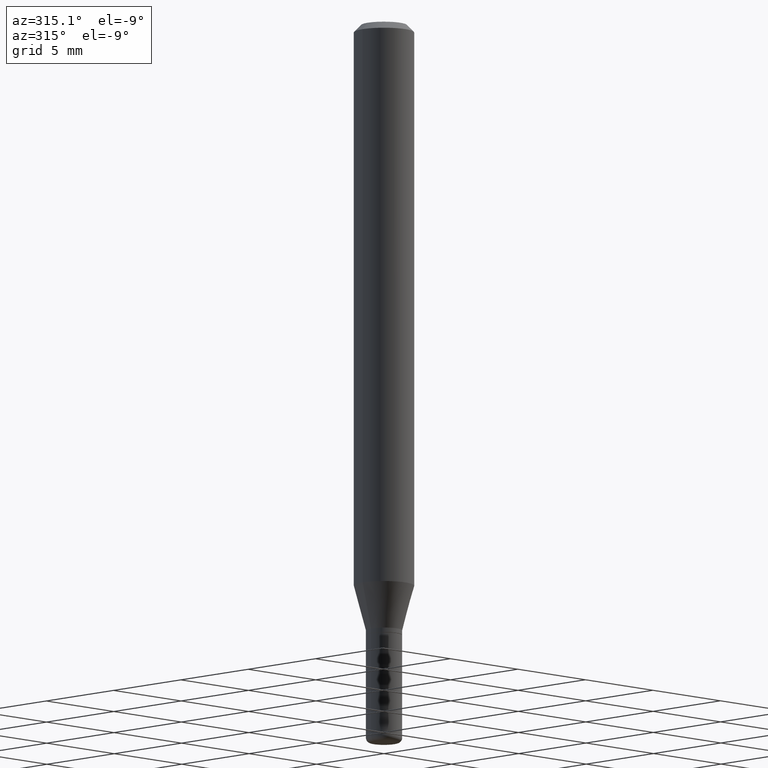
[diagram: clean part render]
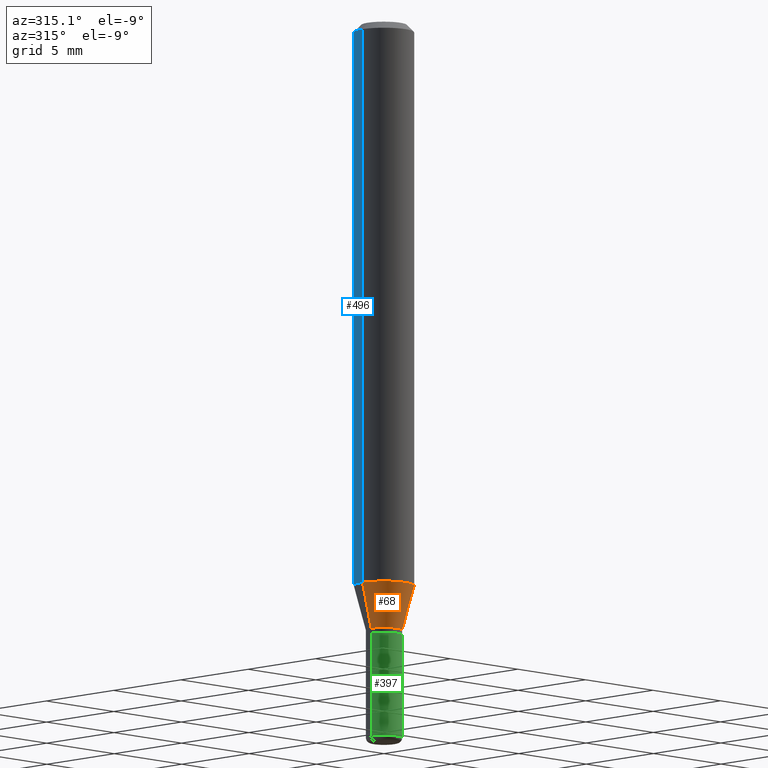
[diagram: same view with three faces highlighted in distinct colors, each labeled with its STEP entity id]
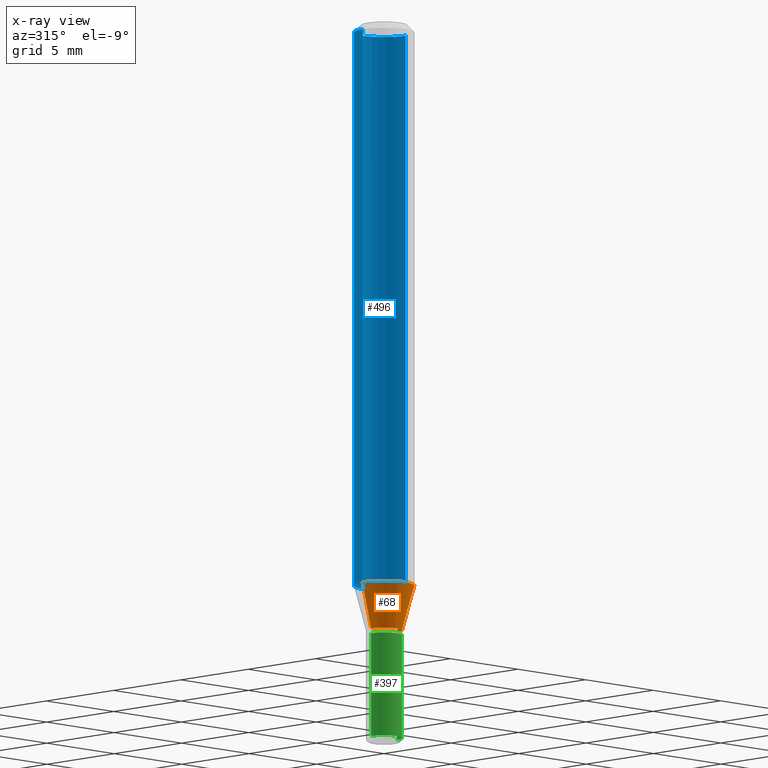
[diagram: x-ray of the same camera — body ghosted, the three highlighted faces saturated]
A machine part, auxiliary view with three faces highlighted in distinct colors.
The next image is the same camera in x-ray (body ghosted, the three faces saturated) — at least one of them is partly hidden behind the body in this view.
Their STEP definitions:

[orange] entity #68 — the highlighted conical surface has half-angle 15 deg.
#2 = LINE ( 'NONE', #164, #67 ) ;
#19 = EDGE_CURVE ( 'NONE', #349, #473, #350, .T. ) ;
#36 = DIRECTION ( 'NONE',  ( 1.000000000000000000, -6.982962677686276177E-15, 0.000000000000000000 ) ) ;
#52 = EDGE_CURVE ( 'NONE', #349, #511, #247, .T. ) ;
#60 = AXIS2_PLACEMENT_3D ( 'NONE', #303, #63, #229 ) ;
#63 = DIRECTION ( 'NONE',  ( -2.445468806185136597E-29, 3.491481338843145583E-15, 1.000000000000000000 ) ) ;
#67 = VECTOR ( 'NONE', #320, 39.37007874015748854 ) ;
#68 = ADVANCED_FACE ( 'NONE', ( #456 ), #282, .T. ) ;
#94 = AXIS2_PLACEMENT_3D ( 'NONE', #117, #393, #36 ) ;
#95 = CIRCLE ( 'NONE', #379, 0.06250000000000000000 ) ;
#117 = CARTESIAN_POINT ( 'NONE',  ( 3.093518039824198064E-29, -4.416723893636579156E-15, -1.265000000000000124 ) ) ;
#155 = EDGE_LOOP ( 'NONE', ( #484, #163, #310, #158 ) ) ;
#158 = ORIENTED_EDGE ( 'NONE', *, *, #330, .F. ) ;
#163 = ORIENTED_EDGE ( 'NONE', *, *, #19, .T. ) ;
#164 = CARTESIAN_POINT ( 'NONE',  ( 0.03749999999999995698, -4.678584994049814158E-15, -1.265000000000000124 ) ) ;
#165 = EDGE_CURVE ( 'NONE', #473, #410, #2, .T. ) ;
#203 = CARTESIAN_POINT ( 'NONE',  ( 2.865352693999004031E-29, -4.090964249880548061E-15, -1.171698729810777939 ) ) ;
#229 = DIRECTION ( 'NONE',  ( 1.000000000000000000, -6.982962677686276177E-15, 0.000000000000000000 ) ) ;
#237 = DIRECTION ( 'NONE',  ( 1.000000000000000000, -6.982962677686262766E-15, 0.000000000000000000 ) ) ;
#247 = LINE ( 'NONE', #446, #338 ) ;
#260 = CARTESIAN_POINT ( 'NONE',  ( -0.06250000000000000000, -3.646875040030485445E-15, -1.171698729810777939 ) ) ;
#282 = CONICAL_SURFACE ( 'NONE', #60, 0.03749999999999995698, 0.2617993877991495189 ) ;
#303 = CARTESIAN_POINT ( 'NONE',  ( 3.093518039824198064E-29, -4.416723893636579156E-15, -1.265000000000000124 ) ) ;
#310 = ORIENTED_EDGE ( 'NONE', *, *, #165, .T. ) ;
#320 = DIRECTION ( 'NONE',  ( 0.2588190451025207950, 1.565188264969625912E-15, 0.9659258262890682012 ) ) ;
#330 = EDGE_CURVE ( 'NONE', #511, #410, #95, .T. ) ;
#338 = VECTOR ( 'NONE', #366, 39.37007874015748854 ) ;
#349 = VERTEX_POINT ( 'NONE', #356 ) ;
#350 = CIRCLE ( 'NONE', #94, 0.03749999999999995698 ) ;
#356 = CARTESIAN_POINT ( 'NONE',  ( -0.03749999999999995698, -3.898572703878513594E-15, -1.265000000000000124 ) ) ;
#362 = DIRECTION ( 'NONE',  ( -2.445468806185136597E-29, 3.491481338843145583E-15, 1.000000000000000000 ) ) ;
#366 = DIRECTION ( 'NONE',  ( -0.2588190451025207950, 5.211531920934546309E-15, 0.9659258262890682012 ) ) ;
#378 = CARTESIAN_POINT ( 'NONE',  ( 0.06250000000000000000, -4.527399417235938941E-15, -1.171698729810777939 ) ) ;
#379 = AXIS2_PLACEMENT_3D ( 'NONE', #203, #362, #237 ) ;
#393 = DIRECTION ( 'NONE',  ( -2.445468806185136597E-29, 3.491481338843145583E-15, 1.000000000000000000 ) ) ;
#410 = VERTEX_POINT ( 'NONE', #378 ) ;
#446 = CARTESIAN_POINT ( 'NONE',  ( -0.03749999999999995698, -4.150270367726541744E-15, -1.265000000000000124 ) ) ;
#455 = CARTESIAN_POINT ( 'NONE',  ( 0.03749999999999995698, -4.678584994049814158E-15, -1.265000000000000124 ) ) ;
#456 = FACE_OUTER_BOUND ( 'NONE', #155, .T. ) ;
#473 = VERTEX_POINT ( 'NONE', #455 ) ;
#484 = ORIENTED_EDGE ( 'NONE', *, *, #52, .F. ) ;
#511 = VERTEX_POINT ( 'NONE', #260 ) ;

[blue] entity #496 — the highlighted cylindrical surface (edge-blend (fillet) strip) has radius 1.5875 mm, axis along (-0, 0, 1).
#34 = EDGE_CURVE ( 'NONE', #410, #451, #80, .T. ) ;
#42 = CARTESIAN_POINT ( 'NONE',  ( -0.06250000000000000000, 4.440892098500626162E-16, -3.074334431409316114E-30 ) ) ;
#56 = CYLINDRICAL_SURFACE ( 'NONE', #236, 0.06250000000000000000 ) ;
#72 = VERTEX_POINT ( 'NONE', #383 ) ;
#80 = LINE ( 'NONE', #348, #406 ) ;
#81 = ORIENTED_EDGE ( 'NONE', *, *, #34, .F. ) ;
#85 = AXIS2_PLACEMENT_3D ( 'NONE', #246, #472, #437 ) ;
#113 = DIRECTION ( 'NONE',  ( -2.445468806185136597E-29, 3.491481338843145583E-15, 1.000000000000000000 ) ) ;
#114 = ORIENTED_EDGE ( 'NONE', *, *, #257, .F. ) ;
#129 = ORIENTED_EDGE ( 'NONE', *, *, #298, .T. ) ;
#166 = DIRECTION ( 'NONE',  ( 1.000000000000000000, -6.982962677686262766E-15, 0.000000000000000000 ) ) ;
#169 = CARTESIAN_POINT ( 'NONE',  ( 0.000000000000000000, 0.000000000000000000, 0.000000000000000000 ) ) ;
#172 = VECTOR ( 'NONE', #354, 39.37007874015748143 ) ;
#198 = ORIENTED_EDGE ( 'NONE', *, *, #213, .T. ) ;
#213 = EDGE_CURVE ( 'NONE', #410, #511, #339, .T. ) ;
#233 = DIRECTION ( 'NONE',  ( -2.445468806185136877E-29, 3.491481338843145188E-15, 1.000000000000000000 ) ) ;
#236 = AXIS2_PLACEMENT_3D ( 'NONE', #169, #288, #454 ) ;
#246 = CARTESIAN_POINT ( 'NONE',  ( 3.668203209277632395E-31, -5.237222008264614861E-17, -0.01499999999999970281 ) ) ;
#257 = EDGE_CURVE ( 'NONE', #451, #72, #477, .T. ) ;
#260 = CARTESIAN_POINT ( 'NONE',  ( -0.06250000000000000000, -3.646875040030485445E-15, -1.171698729810777939 ) ) ;
#261 = FACE_OUTER_BOUND ( 'NONE', #470, .T. ) ;
#288 = DIRECTION ( 'NONE',  ( -2.445468806185136597E-29, 3.491481338843145583E-15, 1.000000000000000000 ) ) ;
#298 = EDGE_CURVE ( 'NONE', #511, #72, #480, .T. ) ;
#339 = CIRCLE ( 'NONE', #359, 0.06250000000000000000 ) ;
#348 = CARTESIAN_POINT ( 'NONE',  ( 0.06250000000000000000, -4.364351673553916694E-16, 3.047610484872459871E-30 ) ) ;
#354 = DIRECTION ( 'NONE',  ( -2.445468806185136877E-29, 3.491481338843145188E-15, 1.000000000000000000 ) ) ;
#359 = AXIS2_PLACEMENT_3D ( 'NONE', #518, #113, #166 ) ;
#378 = CARTESIAN_POINT ( 'NONE',  ( 0.06250000000000000000, -4.527399417235938941E-15, -1.171698729810777939 ) ) ;
#383 = CARTESIAN_POINT ( 'NONE',  ( -0.06250000000000000000, -1.627579025131534165E-15, -0.01499999999999970281 ) ) ;
#406 = VECTOR ( 'NONE', #233, 39.37007874015748143 ) ;
#410 = VERTEX_POINT ( 'NONE', #378 ) ;
#437 = DIRECTION ( 'NONE',  ( 1.000000000000000000, -6.982962677686266711E-15, 0.000000000000000000 ) ) ;
#451 = VERTEX_POINT ( 'NONE', #494 ) ;
#454 = DIRECTION ( 'NONE',  ( 1.000000000000000000, -6.982962677686266711E-15, 4.876176775795935793E-29 ) ) ;
#470 = EDGE_LOOP ( 'NONE', ( #198, #129, #114, #81 ) ) ;
#472 = DIRECTION ( 'NONE',  ( -2.445468806185136597E-29, 3.491481338843145583E-15, 1.000000000000000000 ) ) ;
#477 = CIRCLE ( 'NONE', #85, 0.06250000000000000000 ) ;
#480 = LINE ( 'NONE', #42, #172 ) ;
#494 = CARTESIAN_POINT ( 'NONE',  ( 0.06250000000000000000, -4.888073874380378612E-16, -0.01499999999999970281 ) ) ;
#496 = ADVANCED_FACE ( 'NONE', ( #261 ), #56, .T. ) ;
#511 = VERTEX_POINT ( 'NONE', #260 ) ;
#518 = CARTESIAN_POINT ( 'NONE',  ( 2.865352693999004031E-29, -4.090964249880548061E-15, -1.171698729810777939 ) ) ;

[green] entity #397 — the highlighted cylindrical surface (edge-blend (fillet) strip) has radius 0.9525 mm, axis along (-0, 0, 1).
#8 = CARTESIAN_POINT ( 'NONE',  ( 0.03749999999999999861, -4.713499807438246596E-15, -1.275000000000000133 ) ) ;
#11 = CARTESIAN_POINT ( 'NONE',  ( 0.000000000000000000, 0.000000000000000000, 0.000000000000000000 ) ) ;
#18 = DIRECTION ( 'NONE',  ( -2.445468806185136877E-29, 3.491481338843145188E-15, 1.000000000000000000 ) ) ;
#32 = AXIS2_PLACEMENT_3D ( 'NONE', #327, #294, #424 ) ;
#33 = EDGE_LOOP ( 'NONE', ( #234, #319, #404, #93 ) ) ;
#92 = EDGE_CURVE ( 'NONE', #486, #402, #342, .T. ) ;
#93 = ORIENTED_EDGE ( 'NONE', *, *, #184, .F. ) ;
#98 = CARTESIAN_POINT ( 'NONE',  ( 0.03749999999999994310, -5.464168295289523107E-15, -1.490000000000000213 ) ) ;
#112 = VERTEX_POINT ( 'NONE', #417 ) ;
#125 = CARTESIAN_POINT ( 'NONE',  ( -0.03749999999999997086, 2.664535259100373626E-16, -1.844600658845588407E-30 ) ) ;
#132 = CYLINDRICAL_SURFACE ( 'NONE', #231, 0.03749999999999997086 ) ;
#151 = VECTOR ( 'NONE', #281, 39.37007874015748143 ) ;
#173 = FACE_OUTER_BOUND ( 'NONE', #33, .T. ) ;
#176 = DIRECTION ( 'NONE',  ( 1.000000000000000000, -6.982962677686266711E-15, 4.876176775795935793E-29 ) ) ;
#184 = EDGE_CURVE ( 'NONE', #112, #402, #196, .T. ) ;
#185 = EDGE_CURVE ( 'NONE', #390, #486, #300, .T. ) ;
#196 = CIRCLE ( 'NONE', #216, 0.03749999999999999861 ) ;
#216 = AXIS2_PLACEMENT_3D ( 'NONE', #232, #487, #251 ) ;
#222 = CARTESIAN_POINT ( 'NONE',  ( -0.03749999999999994310, -4.560519425040611649E-15, -1.490000000000000213 ) ) ;
#231 = AXIS2_PLACEMENT_3D ( 'NONE', #11, #328, #176 ) ;
#232 = CARTESIAN_POINT ( 'NONE',  ( 3.117972727886049049E-29, -4.451638707025011594E-15, -1.275000000000000133 ) ) ;
#234 = ORIENTED_EDGE ( 'NONE', *, *, #248, .F. ) ;
#248 = EDGE_CURVE ( 'NONE', #390, #112, #318, .T. ) ;
#251 = DIRECTION ( 'NONE',  ( 1.000000000000000000, -6.982962677686268288E-15, 0.000000000000000000 ) ) ;
#281 = DIRECTION ( 'NONE',  ( -2.445468806185136877E-29, 3.491481338843145188E-15, 1.000000000000000000 ) ) ;
#294 = DIRECTION ( 'NONE',  ( -2.445468806185136597E-29, 3.491481338843145583E-15, 1.000000000000000000 ) ) ;
#300 = CIRCLE ( 'NONE', #32, 0.03749999999999994310 ) ;
#318 = LINE ( 'NONE', #125, #151 ) ;
#319 = ORIENTED_EDGE ( 'NONE', *, *, #185, .T. ) ;
#327 = CARTESIAN_POINT ( 'NONE',  ( 3.643748521215853910E-29, -5.202307194876288105E-15, -1.490000000000000213 ) ) ;
#328 = DIRECTION ( 'NONE',  ( -2.445468806185136597E-29, 3.491481338843145583E-15, 1.000000000000000000 ) ) ;
#342 = LINE ( 'NONE', #412, #488 ) ;
#390 = VERTEX_POINT ( 'NONE', #222 ) ;
#397 = ADVANCED_FACE ( 'NONE', ( #173 ), #132, .T. ) ;
#402 = VERTEX_POINT ( 'NONE', #8 ) ;
#404 = ORIENTED_EDGE ( 'NONE', *, *, #92, .T. ) ;
#412 = CARTESIAN_POINT ( 'NONE',  ( 0.03749999999999997086, -2.618611004132348044E-16, 1.828566290923474521E-30 ) ) ;
#417 = CARTESIAN_POINT ( 'NONE',  ( -0.03749999999999999861, -4.560519425040611649E-15, -1.275000000000000133 ) ) ;
#424 = DIRECTION ( 'NONE',  ( 1.000000000000000000, -6.982962677686278543E-15, 0.000000000000000000 ) ) ;
#486 = VERTEX_POINT ( 'NONE', #98 ) ;
#487 = DIRECTION ( 'NONE',  ( -2.445468806185136597E-29, 3.491481338843145583E-15, 1.000000000000000000 ) ) ;
#488 = VECTOR ( 'NONE', #18, 39.37007874015748143 ) ;